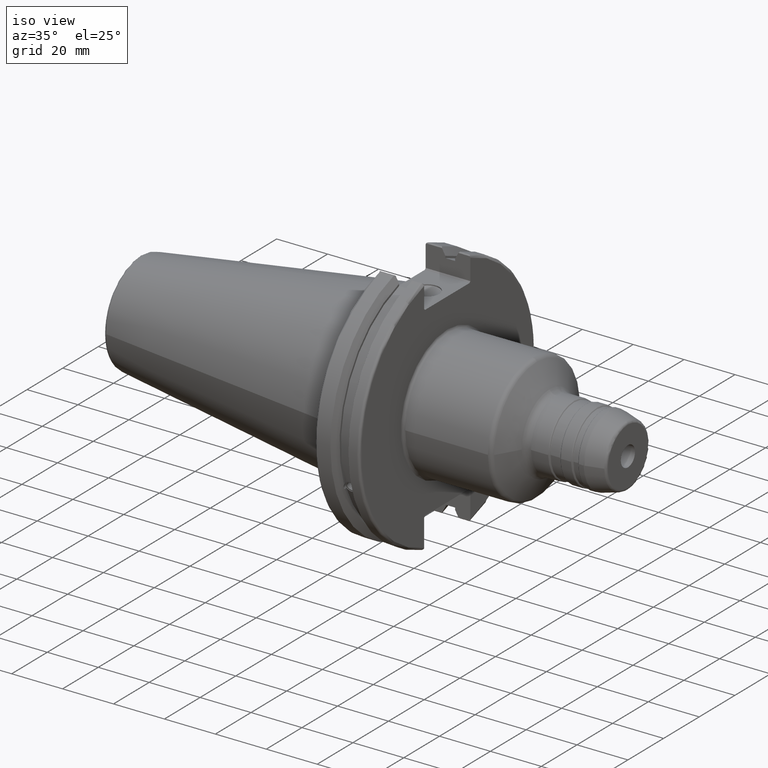
[diagram: clean part render]
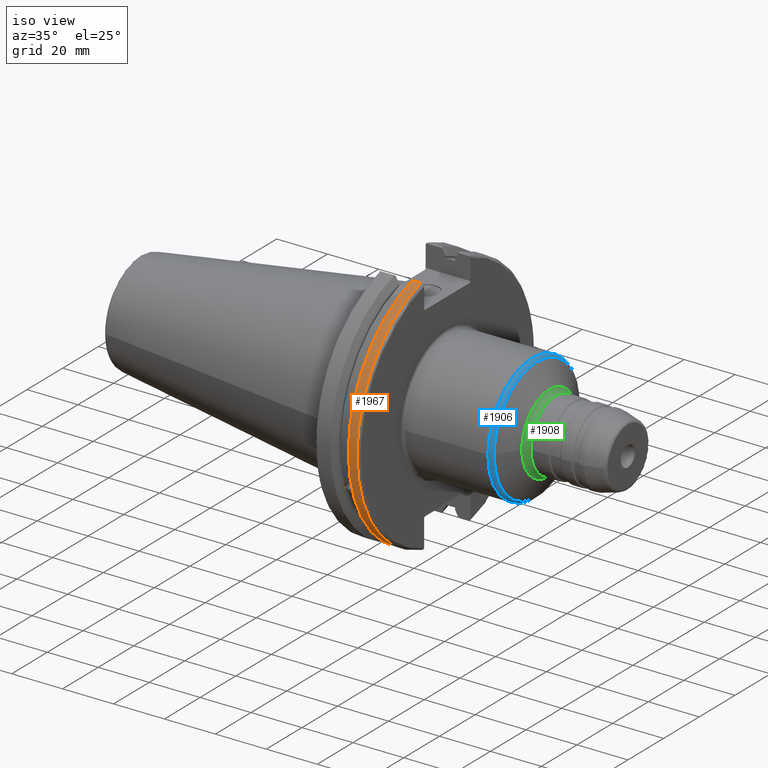
[diagram: same view with three faces highlighted in distinct colors, each labeled with its STEP entity id]
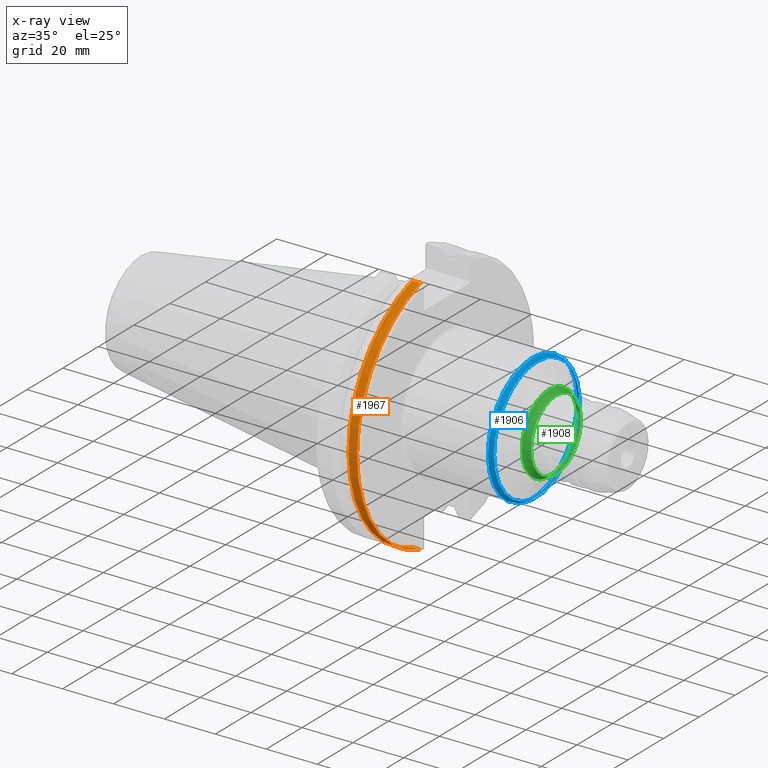
[diagram: x-ray of the same camera — body ghosted, the three highlighted faces saturated]
A machine part, iso view with three faces highlighted in distinct colors.
The next image is the same camera in x-ray (body ghosted, the three faces saturated) — at least one of them is partly hidden behind the body in this view.
Their STEP definitions:

[orange] entity #1967 — the highlighted cylindrical surface (partial cylindrical patch) has radius 49.2125 mm, axis along (1, 0, 0).
#247=LINE('',#3882,#353);
#248=LINE('',#3884,#354);
#353=VECTOR('',#2764,10.);
#354=VECTOR('',#2767,10.);
#388=CYLINDRICAL_SURFACE('',#2218,49.2125);
#481=FACE_OUTER_BOUND('',#606,.T.);
#606=EDGE_LOOP('',(#1755,#1756,#1757,#1758));
#717=CIRCLE('',#2144,49.2125);
#737=CIRCLE('',#2186,49.2125);
#867=VERTEX_POINT('',#3352);
#868=VERTEX_POINT('',#3356);
#917=VERTEX_POINT('',#3690);
#918=VERTEX_POINT('',#3699);
#1105=EDGE_CURVE('',#868,#867,#717,.T.);
#1175=EDGE_CURVE('',#917,#918,#737,.T.);
#1237=EDGE_CURVE('',#918,#867,#247,.T.);
#1238=EDGE_CURVE('',#868,#917,#248,.T.);
#1755=ORIENTED_EDGE('',*,*,#1175,.F.);
#1756=ORIENTED_EDGE('',*,*,#1238,.F.);
#1757=ORIENTED_EDGE('',*,*,#1105,.T.);
#1758=ORIENTED_EDGE('',*,*,#1237,.F.);
#1967=ADVANCED_FACE('',(#481),#388,.T.);
#2144=AXIS2_PLACEMENT_3D('',#3357,#2559,#2560);
#2186=AXIS2_PLACEMENT_3D('',#3700,#2666,#2667);
#2218=AXIS2_PLACEMENT_3D('',#3883,#2765,#2766);
#2559=DIRECTION('center_axis',(1.,0.,0.));
#2560=DIRECTION('ref_axis',(0.,0.,-1.));
#2666=DIRECTION('center_axis',(1.,0.,0.));
#2667=DIRECTION('ref_axis',(0.,-1.,1.60812264967664E-16));
#2764=DIRECTION('',(-1.,0.,0.));
#2765=DIRECTION('center_axis',(1.,0.,0.));
#2766=DIRECTION('ref_axis',(0.,-1.,1.22464679914735E-16));
#2767=DIRECTION('',(1.,0.,0.));
#3352=CARTESIAN_POINT('',(14.6602090340487,-13.4317035994433,-47.3440544806494));
#3356=CARTESIAN_POINT('',(14.6602090340487,-13.4317035994433,47.3440544806494));
#3357=CARTESIAN_POINT('Origin',(14.6602090340487,0.,0.));
#3690=CARTESIAN_POINT('',(18.05,-13.4317035994433,47.3440544806494));
#3699=CARTESIAN_POINT('',(18.05,-13.4317035994433,-47.3440544806494));
#3700=CARTESIAN_POINT('Origin',(18.05,0.,0.));
#3882=CARTESIAN_POINT('',(16.8551045170244,-13.4317035994433,-47.3440544806494));
#3883=CARTESIAN_POINT('Origin',(16.8551045170244,0.,0.));
#3884=CARTESIAN_POINT('',(16.8551045170244,-13.4317035994433,47.3440544806494));

[blue] entity #1906 — the highlighted toroidal blend (fillet) surface has major radius 23 mm and minor (blend) radius 2 mm.
#420=FACE_OUTER_BOUND('',#532,.T.);
#532=EDGE_LOOP('',(#1410,#1411,#1412,#1413,#1414,#1415));
#690=CIRCLE('',#2094,25.);
#691=CIRCLE('',#2095,25.);
#694=CIRCLE('',#2100,24.);
#695=CIRCLE('',#2101,24.);
#696=CIRCLE('',#2102,2.);
#812=VERTEX_POINT('',#2993);
#813=VERTEX_POINT('',#2994);
#826=VERTEX_POINT('',#3024);
#827=VERTEX_POINT('',#3025);
#1032=EDGE_CURVE('',#812,#813,#690,.T.);
#1034=EDGE_CURVE('',#813,#812,#691,.T.);
#1047=EDGE_CURVE('',#826,#827,#694,.T.);
#1048=EDGE_CURVE('',#827,#826,#695,.T.);
#1049=EDGE_CURVE('',#826,#813,#696,.T.);
#1410=ORIENTED_EDGE('',*,*,#1047,.T.);
#1411=ORIENTED_EDGE('',*,*,#1048,.T.);
#1412=ORIENTED_EDGE('',*,*,#1049,.T.);
#1413=ORIENTED_EDGE('',*,*,#1034,.T.);
#1414=ORIENTED_EDGE('',*,*,#1032,.T.);
#1415=ORIENTED_EDGE('',*,*,#1049,.F.);
#1874=TOROIDAL_SURFACE('',#2099,23.,2.);
#1906=ADVANCED_FACE('',(#420),#1874,.T.);
#2094=AXIS2_PLACEMENT_3D('',#2995,#2430,#2431);
#2095=AXIS2_PLACEMENT_3D('',#2997,#2433,#2434);
#2099=AXIS2_PLACEMENT_3D('',#3023,#2451,#2452);
#2100=AXIS2_PLACEMENT_3D('',#3026,#2453,#2454);
#2101=AXIS2_PLACEMENT_3D('',#3027,#2455,#2456);
#2102=AXIS2_PLACEMENT_3D('',#3028,#2457,#2458);
#2430=DIRECTION('center_axis',(1.,0.,0.));
#2431=DIRECTION('ref_axis',(0.,-1.,1.83697019872103E-16));
#2433=DIRECTION('center_axis',(1.,0.,0.));
#2434=DIRECTION('ref_axis',(0.,-1.,1.83697019872103E-16));
#2451=DIRECTION('center_axis',(1.,0.,0.));
#2452=DIRECTION('ref_axis',(0.,0.,-1.));
#2453=DIRECTION('center_axis',(-1.,0.,0.));
#2454=DIRECTION('ref_axis',(0.,-1.,3.06161699786838E-17));
#2455=DIRECTION('center_axis',(-1.,0.,0.));
#2456=DIRECTION('ref_axis',(0.,-1.,3.06161699786838E-17));
#2457=DIRECTION('center_axis',(0.,-1.,-1.22464679914735E-16));
#2458=DIRECTION('ref_axis',(0.,-1.22464679914735E-16,1.));
#2993=CARTESIAN_POINT('',(52.4944465005348,-25.,-3.06161699786838E-15));
#2994=CARTESIAN_POINT('',(52.4944465005348,-3.06161699786838E-15,25.));
#2995=CARTESIAN_POINT('Origin',(52.4944465005348,0.,0.));
#2997=CARTESIAN_POINT('Origin',(52.4944465005348,0.,0.));
#3023=CARTESIAN_POINT('Origin',(52.4944465005348,0.,0.));
#3024=CARTESIAN_POINT('',(54.2264973081037,-2.93915231795365E-15,24.));
#3025=CARTESIAN_POINT('',(54.2264973081037,-24.,-2.93915231795365E-15));
#3026=CARTESIAN_POINT('Origin',(54.2264973081037,0.,-3.67394039744206E-15));
#3027=CARTESIAN_POINT('Origin',(54.2264973081037,0.,-3.67394039744206E-15));
#3028=CARTESIAN_POINT('Origin',(52.4944465005348,-2.81668763803891E-15,
23.));

[green] entity #1908 — the highlighted toroidal blend (fillet) surface has major radius 17 mm and minor (blend) radius 3 mm.
#422=FACE_OUTER_BOUND('',#534,.T.);
#534=EDGE_LOOP('',(#1422,#1423,#1424,#1425,#1426,#1427));
#665=CIRCLE('',#2058,14.);
#666=CIRCLE('',#2059,14.);
#697=CIRCLE('',#2104,15.5);
#698=CIRCLE('',#2105,15.5);
#699=CIRCLE('',#2107,3.);
#793=VERTEX_POINT('',#2934);
#794=VERTEX_POINT('',#2936);
#828=VERTEX_POINT('',#3030);
#829=VERTEX_POINT('',#3031);
#1004=EDGE_CURVE('',#794,#793,#665,.T.);
#1005=EDGE_CURVE('',#793,#794,#666,.T.);
#1050=EDGE_CURVE('',#828,#829,#697,.T.);
#1052=EDGE_CURVE('',#829,#828,#698,.T.);
#1053=EDGE_CURVE('',#829,#794,#699,.T.);
#1422=ORIENTED_EDGE('',*,*,#1050,.T.);
#1423=ORIENTED_EDGE('',*,*,#1053,.T.);
#1424=ORIENTED_EDGE('',*,*,#1004,.T.);
#1425=ORIENTED_EDGE('',*,*,#1005,.T.);
#1426=ORIENTED_EDGE('',*,*,#1053,.F.);
#1427=ORIENTED_EDGE('',*,*,#1052,.T.);
#1875=TOROIDAL_SURFACE('',#2106,17.,3.);
#1908=ADVANCED_FACE('',(#422),#1875,.F.);
#2058=AXIS2_PLACEMENT_3D('',#2937,#2355,#2356);
#2059=AXIS2_PLACEMENT_3D('',#2938,#2357,#2358);
#2104=AXIS2_PLACEMENT_3D('',#3032,#2461,#2462);
#2105=AXIS2_PLACEMENT_3D('',#3034,#2464,#2465);
#2106=AXIS2_PLACEMENT_3D('',#3035,#2466,#2467);
#2107=AXIS2_PLACEMENT_3D('',#3036,#2468,#2469);
#2355=DIRECTION('center_axis',(-1.,0.,0.));
#2356=DIRECTION('ref_axis',(0.,-1.,1.83697019872103E-16));
#2357=DIRECTION('center_axis',(-1.,0.,0.));
#2358=DIRECTION('ref_axis',(0.,-1.,1.83697019872103E-16));
#2461=DIRECTION('center_axis',(1.,0.,0.));
#2462=DIRECTION('ref_axis',(0.,-1.,3.06161699786838E-17));
#2464=DIRECTION('center_axis',(1.,0.,0.));
#2465=DIRECTION('ref_axis',(0.,-1.,3.06161699786838E-17));
#2466=DIRECTION('center_axis',(1.,0.,0.));
#2467=DIRECTION('ref_axis',(0.,0.,-1.));
#2468=DIRECTION('center_axis',(0.,-1.,-1.22464679914735E-16));
#2469=DIRECTION('ref_axis',(0.,-1.22464679914735E-16,1.));
#2934=CARTESIAN_POINT('',(61.7320508075689,-14.,-1.71450551880629E-15));
#2936=CARTESIAN_POINT('',(61.7320508075689,-1.71450551880629E-15,14.));
#2937=CARTESIAN_POINT('Origin',(61.7320508075689,0.,0.));
#2938=CARTESIAN_POINT('Origin',(61.7320508075689,0.,0.));
#3030=CARTESIAN_POINT('',(59.1339745962156,-15.5,-1.8982025386784E-15));
#3031=CARTESIAN_POINT('',(59.1339745962156,-1.8982025386784E-15,15.5));
#3032=CARTESIAN_POINT('Origin',(59.1339745962156,0.,-2.372753173348E-15));
#3034=CARTESIAN_POINT('Origin',(59.1339745962156,0.,-2.372753173348E-15));
#3035=CARTESIAN_POINT('Origin',(61.7320508075689,0.,0.));
#3036=CARTESIAN_POINT('Origin',(61.7320508075689,-2.0818995585505E-15,17.));